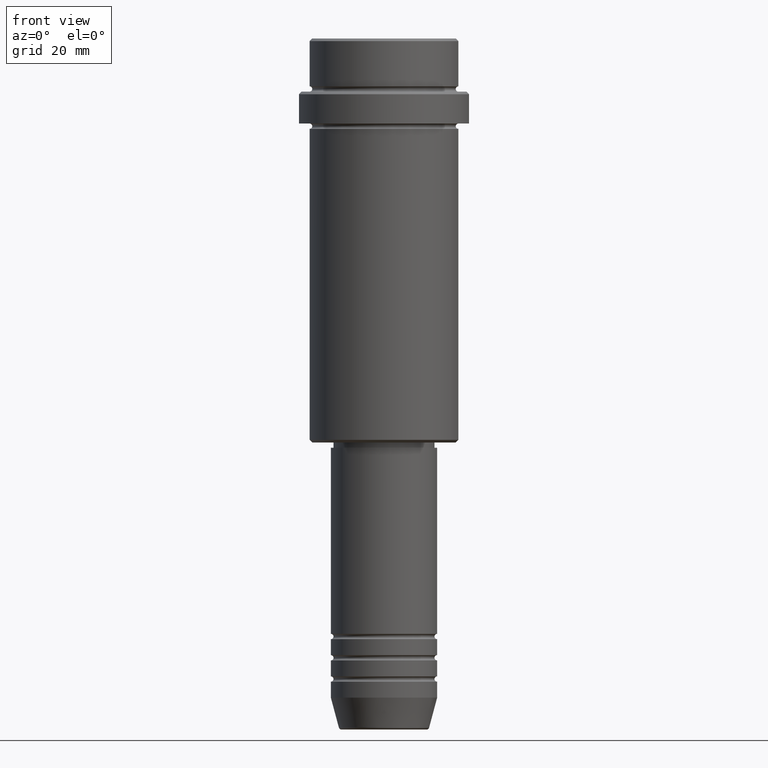
[diagram: clean part render]
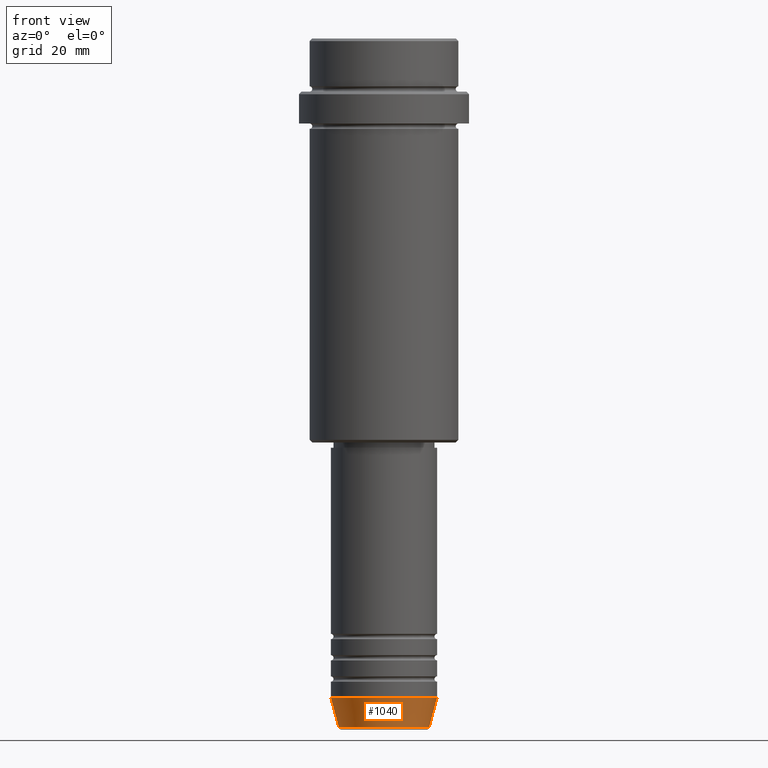
[diagram: same view with one face highlighted and labeled with its STEP entity id]
A machine part, front view. The second image highlights one B-rep face of the part: STEP entity #1040.
In plain terms, the highlighted conical surface has half-angle 15 deg.
Its self-contained STEP definition (entity closure, byte-faithful):
#81 = AXIS2_PLACEMENT_3D ( 'NONE', #866, #90, #1186 ) ;
#90 = DIRECTION ( 'NONE',  ( -0.000000000000000000, -0.000000000000000000, 1.000000000000000000 ) ) ;
#117 = VERTEX_POINT ( 'NONE', #1180 ) ;
#143 = ORIENTED_EDGE ( 'NONE', *, *, #1353, .F. ) ;
#144 = EDGE_CURVE ( 'NONE', #943, #520, #714, .T. ) ;
#151 = VECTOR ( 'NONE', #788, 1000.000000000000114 ) ;
#192 = DIRECTION ( 'NONE',  ( 1.000000000000000000, 0.000000000000000000, 0.000000000000000000 ) ) ;
#236 = EDGE_CURVE ( 'NONE', #520, #1151, #451, .T. ) ;
#247 = CARTESIAN_POINT ( 'NONE',  ( -8.491604264568309191, 1.132284198685156387E-15, -129.6294095225512706 ) ) ;
#248 = AXIS2_PLACEMENT_3D ( 'NONE', #299, #1303, #991 ) ;
#261 = ORIENTED_EDGE ( 'NONE', *, *, #144, .T. ) ;
#282 = ORIENTED_EDGE ( 'NONE', *, *, #724, .F. ) ;
#299 = CARTESIAN_POINT ( 'NONE',  ( 0.000000000000000000, 0.000000000000000000, -124.0000000000000000 ) ) ;
#301 = ORIENTED_EDGE ( 'NONE', *, *, #236, .T. ) ;
#307 = CARTESIAN_POINT ( 'NONE',  ( 0.000000000000000000, 0.000000000000000000, -124.0000000000000000 ) ) ;
#372 = CARTESIAN_POINT ( 'NONE',  ( 10.00000000000000000, 0.000000000000000000, -124.0000000000000000 ) ) ;
#379 = EDGE_LOOP ( 'NONE', ( #143, #261, #301, #282 ) ) ;
#451 = LINE ( 'NONE', #372, #151 ) ;
#520 = VERTEX_POINT ( 'NONE', #1401 ) ;
#598 = AXIS2_PLACEMENT_3D ( 'NONE', #307, #658, #192 ) ;
#637 = FACE_OUTER_BOUND ( 'NONE', #379, .T. ) ;
#658 = DIRECTION ( 'NONE',  ( -0.000000000000000000, -0.000000000000000000, 1.000000000000000000 ) ) ;
#714 = CIRCLE ( 'NONE', #81, 8.491604264568309191 ) ;
#724 = EDGE_CURVE ( 'NONE', #117, #1151, #848, .T. ) ;
#788 = DIRECTION ( 'NONE',  ( 0.2588190451025211281, 0.000000000000000000, 0.9659258262890680902 ) ) ;
#848 = CIRCLE ( 'NONE', #248, 10.00000000000000000 ) ;
#866 = CARTESIAN_POINT ( 'NONE',  ( 0.000000000000000000, 0.000000000000000000, -129.6294095225512706 ) ) ;
#891 = LINE ( 'NONE', #914, #1362 ) ;
#914 = CARTESIAN_POINT ( 'NONE',  ( -10.00000000000000000, 1.224646799147353256E-15, -124.0000000000000000 ) ) ;
#943 = VERTEX_POINT ( 'NONE', #247 ) ;
#991 = DIRECTION ( 'NONE',  ( 1.000000000000000000, 0.000000000000000000, 0.000000000000000000 ) ) ;
#1016 = DIRECTION ( 'NONE',  ( -0.2588190451025211281, 3.169619151431769872E-17, 0.9659258262890680902 ) ) ;
#1020 = CARTESIAN_POINT ( 'NONE',  ( 10.00000000000000000, 0.000000000000000000, -124.0000000000000000 ) ) ;
#1040 = ADVANCED_FACE ( 'NONE', ( #637 ), #1174, .T. ) ;
#1151 = VERTEX_POINT ( 'NONE', #1020 ) ;
#1174 = CONICAL_SURFACE ( 'NONE', #598, 10.00000000000000000, 0.2617993877991498519 ) ;
#1180 = CARTESIAN_POINT ( 'NONE',  ( -10.00000000000000000, 1.224646799147353256E-15, -124.0000000000000000 ) ) ;
#1186 = DIRECTION ( 'NONE',  ( 1.000000000000000000, 0.000000000000000000, 0.000000000000000000 ) ) ;
#1303 = DIRECTION ( 'NONE',  ( -0.000000000000000000, -0.000000000000000000, 1.000000000000000000 ) ) ;
#1353 = EDGE_CURVE ( 'NONE', #943, #117, #891, .T. ) ;
#1362 = VECTOR ( 'NONE', #1016, 1000.000000000000114 ) ;
#1401 = CARTESIAN_POINT ( 'NONE',  ( 8.491604264568309191, 0.000000000000000000, -129.6294095225512706 ) ) ;